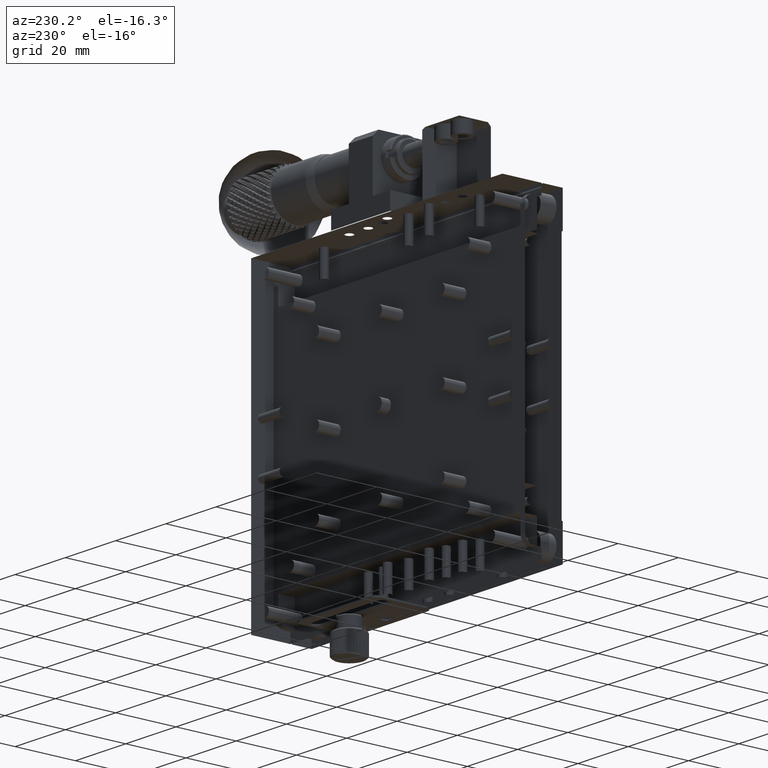
[diagram: clean part render]
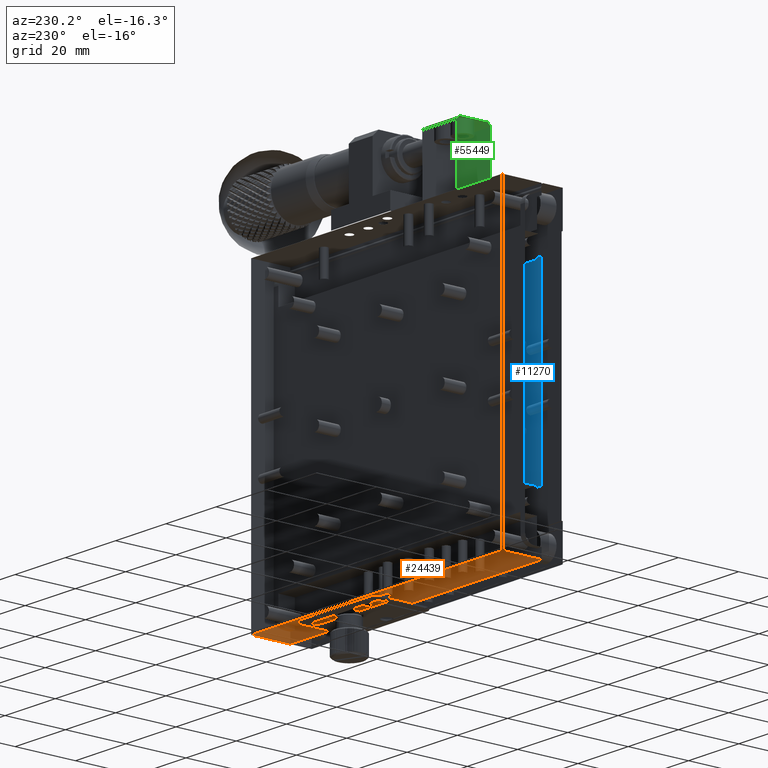
[diagram: same view with three faces highlighted in distinct colors, each labeled with its STEP entity id]
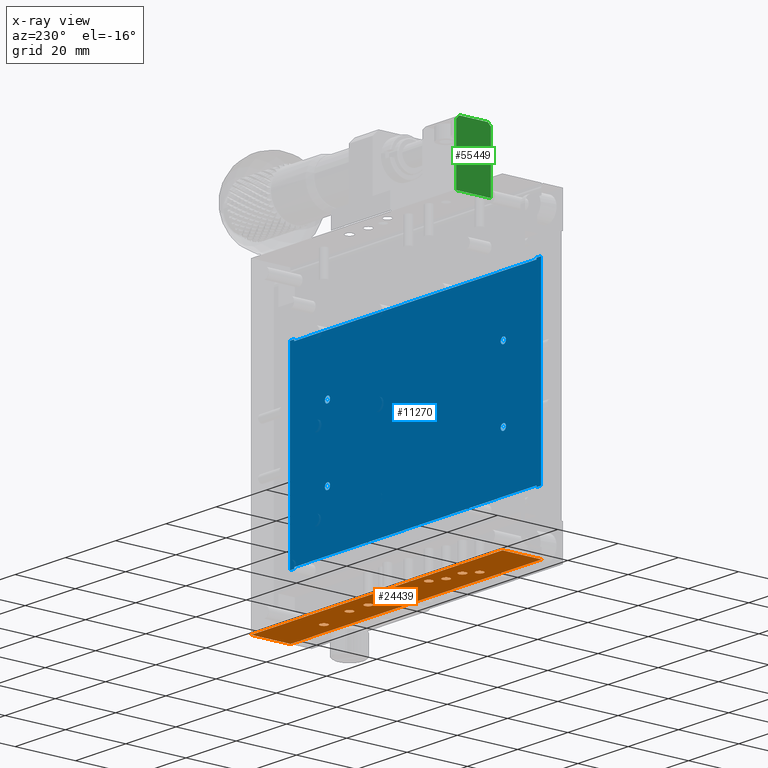
[diagram: x-ray of the same camera — body ghosted, the three highlighted faces saturated]
A machine part, auxiliary view with three faces highlighted in distinct colors.
The next image is the same camera in x-ray (body ghosted, the three faces saturated) — at least one of them is partly hidden behind the body in this view.
Their STEP definitions:

[orange] entity #24439 — the highlighted planar face has unit normal (-0, -0, -1).
#1 = CARTESIAN_POINT ( 'NONE',  ( 30.11189463976842973, -0.6766607809622278147, -49.99998749999998182 ) ) ;
#487 = CARTESIAN_POINT ( 'NONE',  ( 32.55109935357895523, -0.2909499766029360890, -49.99998749999998182 ) ) ;
#923 = VERTEX_POINT ( 'NONE', #89076 ) ;
#1225 = CARTESIAN_POINT ( 'NONE',  ( 44.64249512833340106, -4.340882674701688870, -49.99998749999997472 ) ) ;
#2143 = B_SPLINE_CURVE_WITH_KNOTS ( 'NONE', 3,
 ( #72555, #64238, #72078, #5052, #5536, #65206, #57368, #34877, #64718, #87210, #90102, #36796, #66670, #29007, #37763, #14812, #58813, #96483, #89622, #22139, #53394, #83248, #59305, #38235, #59797, #89135, #51935, #22616, #16256, #52414, #21646, #68112, #46011, #23103 ),
 .UNSPECIFIED., .F., .F.,
 ( 4, 1, 1, 2, 2, 2, 1, 1, 2, 2, 2, 1, 1, 2, 2, 2, 1, 1, 2, 2, 4 ),
 ( 0.000000000000000000, 0.06249999999999726608, 0.09374999999999521216, 0.1093749999999933942, 0.1249999999999915901, 0.2499999999999688027, 0.3124999999999574229, 0.3437499999999539257, 0.3593749999999545364, 0.3749999999999550915, 0.4999999999999845679, 0.5624999999999965583, 0.5937499999999998890, 0.6093750000000015543, 0.6250000000000032196, 0.7500000000000022204, 0.8125000000000017764, 0.8437500000000014433, 0.8593750000000013323, 0.8750000000000013323, 1.000000000000000000 ),
 .UNSPECIFIED. ) ;
#2212 = ORIENTED_EDGE ( 'NONE', *, *, #41219, .F. ) ;
#2311 = ORIENTED_EDGE ( 'NONE', *, *, #88063, .F. ) ;
#2722 = DIRECTION ( 'NONE',  ( 1.000000000000000000, -1.110223024625156047E-16, 0.000000000000000000 ) ) ;
#3255 = CARTESIAN_POINT ( 'NONE',  ( 30.68081080159339180, 0.8079520028618760730, -49.99998749999997472 ) ) ;
#4238 = CARTESIAN_POINT ( 'NONE',  ( 30.86100223725581415, 0.8792020743329770349, -49.99998749999998182 ) ) ;
#5052 = CARTESIAN_POINT ( 'NONE',  ( 46.00813125657287372, -2.761487962147437969, -49.99998749999998893 ) ) ;
#5536 = CARTESIAN_POINT ( 'NONE',  ( 45.99030406738951626, -2.705239172241823198, -49.99998749999998893 ) ) ;
#6295 = DIRECTION ( 'NONE',  ( 0.000000000000000000, 1.000000000000000000, 0.000000000000000000 ) ) ;
#6787 = CARTESIAN_POINT ( 'NONE',  ( -36.19890064642102345, 5.209050023397072238, -49.99998749999998182 ) ) ;
#7811 = CARTESIAN_POINT ( 'NONE',  ( 31.74119646990258303, -1.461102027538641268, -49.99998749999996761 ) ) ;
#8048 = CARTESIAN_POINT ( 'NONE',  ( 13.80109935357898365, 1.709050023397062246, -49.99998749999998182 ) ) ;
#8222 = FACE_BOUND ( 'NONE', #38313, .T. ) ;
#8296 = CARTESIAN_POINT ( 'NONE',  ( 30.05109935357901207, -0.2909499766029360890, -49.99998749999998182 ) ) ;
#8436 = DIRECTION ( 'NONE',  ( 0.000000000000000000, 1.000000000000000000, -4.567142844767030888E-17 ) ) ;
#8684 = CARTESIAN_POINT ( 'NONE',  ( 32.30672078695228322, 0.4710906127217621697, -49.99998749999997472 ) ) ;
#9022 = CARTESIAN_POINT ( 'NONE',  ( 45.22410065792989542, -4.267371456677749642, -49.99998749999999603 ) ) ;
#9631 = CARTESIAN_POINT ( 'NONE',  ( 30.05109935357901563, -0.1318188003481539083, -49.99998749999996761 ) ) ;
#10605 = CARTESIAN_POINT ( 'NONE',  ( 30.17299672845223313, 0.2480296904213052933, -49.99998749999998182 ) ) ;
#11090 = CARTESIAN_POINT ( 'NONE',  ( 30.97174903715046668, 0.9161260932636491328, -49.99998749999998182 ) ) ;
#11666 = CARTESIAN_POINT ( 'NONE',  ( 13.80109935357898365, 2.959050023397034046, -49.99998749999998182 ) ) ;
#12949 = ORIENTED_EDGE ( 'NONE', *, *, #63168, .F. ) ;
#13709 = CARTESIAN_POINT ( 'NONE',  ( 30.82255048260569907, -1.445880084025972900, -49.99998749999998182 ) ) ;
#13980 = EDGE_CURVE ( 'NONE', #42574, #42574, #26356, .T. ) ;
#14195 = CARTESIAN_POINT ( 'NONE',  ( 30.57670722556765597, -1.316239966831133978, -49.99998749999998182 ) ) ;
#14460 = CARTESIAN_POINT ( 'NONE',  ( 43.55109935357902629, -3.170337192478786648, -49.99998749999998893 ) ) ;
#14495 = EDGE_LOOP ( 'NONE', ( #72380, #31670, #2311, #23659 ) ) ;
#14680 = CARTESIAN_POINT ( 'NONE',  ( 32.55109935357896944, -0.4500811528574514275, -49.99998749999998893 ) ) ;
#14812 = CARTESIAN_POINT ( 'NONE',  ( 45.11377386836191050, -1.870272449035110807, -49.99998749999998182 ) ) ;
#15160 = CARTESIAN_POINT ( 'NONE',  ( 32.40121867572790393, -0.8874745937926417083, -49.99998749999997472 ) ) ;
#15409 = CIRCLE ( 'NONE', #30959, 1.249999999999971578 ) ;
#15420 = CARTESIAN_POINT ( 'NONE',  ( 45.56313994290253788, -4.096571409978222000, -49.99998749999998893 ) ) ;
#16051 = CARTESIAN_POINT ( 'NONE',  ( 32.55109935357894102, -0.2115627607248733721, -49.99998749999997472 ) ) ;
#16256 = CARTESIAN_POINT ( 'NONE',  ( 43.67299672845229708, -2.551970309578647456, -49.99998749999996761 ) ) ;
#16505 = DIRECTION ( 'NONE',  ( -2.533746612221223024E-17, -4.567142844767030888E-17, -1.000000000000000000 ) ) ;
#17024 = EDGE_LOOP ( 'NONE', ( #19955 ) ) ;
#18871 = CARTESIAN_POINT ( 'NONE',  ( 13.80109935357898365, 5.209050023397062468, -49.99998749999998182 ) ) ;
#18912 = AXIS2_PLACEMENT_3D ( 'NONE', #64045, #49311, #21460 ) ;
#18923 = CARTESIAN_POINT ( 'NONE',  ( 30.05109935357901207, -0.2909499766029360890, -49.99998749999998182 ) ) ;
#19299 = FACE_BOUND ( 'NONE', #44543, .T. ) ;
#19527 = CARTESIAN_POINT ( 'NONE',  ( -2.698900646421011018, 1.709050023397065576, -49.99998749999998182 ) ) ;
#19606 = CARTESIAN_POINT ( 'NONE',  ( -7.198900646421018124, 0.9590500233970407074, -49.99998749999998182 ) ) ;
#19708 = DIRECTION ( 'NONE',  ( 0.000000000000000000, 1.000000000000000000, 0.000000000000000000 ) ) ;
#19777 = VERTEX_POINT ( 'NONE', #28473 ) ;
#19955 = ORIENTED_EDGE ( 'NONE', *, *, #42604, .F. ) ;
#20732 = DIRECTION ( 'NONE',  ( 2.533746612221223024E-17, 4.567142844767031505E-17, 1.000000000000000000 ) ) ;
#20901 = VECTOR ( 'NONE', #8436, 1000.000000000000000 ) ;
#21460 = DIRECTION ( 'NONE',  ( 0.000000000000000000, 1.000000000000000000, 0.000000000000000000 ) ) ;
#21646 = CARTESIAN_POINT ( 'NONE',  ( 43.64617769589031582, -2.612379787769774975, -49.99998749999998893 ) ) ;
#21774 = CARTESIAN_POINT ( 'NONE',  ( 45.42138790556607120, -4.189851956066528160, -49.99998749999998182 ) ) ;
#21993 = CARTESIAN_POINT ( 'NONE',  ( 63.80109935357896944, 5.209050023397068685, -49.99998749999998182 ) ) ;
#21999 = CARTESIAN_POINT ( 'NONE',  ( 32.42920197870531496, -0.8299296436283543077, -49.99998749999998182 ) ) ;
#22139 = CARTESIAN_POINT ( 'NONE',  ( 44.47174903714928007, -1.883873906736349468, -49.99998749999998182 ) ) ;
#22270 = CARTESIAN_POINT ( 'NONE',  ( 44.88040146620178206, -4.340983627553519852, -49.99998749999998893 ) ) ;
#22320 = ORIENTED_EDGE ( 'NONE', *, *, #94536, .F. ) ;
#22472 = LINE ( 'NONE', #21993, #93833 ) ;
#22477 = CARTESIAN_POINT ( 'NONE',  ( 30.98842483879424137, -1.511627504170761194, -49.99998749999996761 ) ) ;
#22586 = EDGE_LOOP ( 'NONE', ( #56961 ) ) ;
#22616 = CARTESIAN_POINT ( 'NONE',  ( 43.70098003142947363, -2.494425359414988996, -49.99998749999998893 ) ) ;
#22742 = CARTESIAN_POINT ( 'NONE',  ( 44.26211968655263007, -4.219052601727460328, -49.99998749999998182 ) ) ;
#22967 = CARTESIAN_POINT ( 'NONE',  ( 31.63044967000706720, -1.498026046469519867, -49.99998749999998893 ) ) ;
#23103 = CARTESIAN_POINT ( 'NONE',  ( 43.55109935357902629, -3.090949976602936466, -49.99998749999998182 ) ) ;
#23239 = CARTESIAN_POINT ( 'NONE',  ( 46.05109935357895523, -3.090949976602936466, -49.99998749999998182 ) ) ;
#23659 = ORIENTED_EDGE ( 'NONE', *, *, #27985, .F. ) ;
#23861 = FACE_BOUND ( 'NONE', #84048, .T. ) ;
#24439 = ADVANCED_FACE ( 'NONE', ( #31186, #86297, #19299, #53663, #68389, #75226, #90869, #23861, #40791, #8222, #48581 ), #90388, .F. ) ;
#24800 = CARTESIAN_POINT ( 'NONE',  ( 30.15524928440126473, 0.2090564817825786570, -49.99998749999998893 ) ) ;
#25981 = EDGE_CURVE ( 'NONE', #51327, #51327, #37760, .T. ) ;
#26356 = CIRCLE ( 'NONE', #80984, 1.249999999999973355 ) ;
#27985 = EDGE_CURVE ( 'NONE', #19777, #85421, #22472, .T. ) ;
#28473 = CARTESIAN_POINT ( 'NONE',  ( 63.80109935357896944, 5.209050023397058915, -49.99998749999998182 ) ) ;
#28477 = EDGE_CURVE ( 'NONE', #88538, #88538, #61088, .T. ) ;
#28892 = CARTESIAN_POINT ( 'NONE',  ( 23.80109935357898365, 0.9590500233970372657, -49.99998749999998182 ) ) ;
#29007 = CARTESIAN_POINT ( 'NONE',  ( 45.30110581196530717, -1.945099907425916985, -49.99998749999998182 ) ) ;
#29115 = DIRECTION ( 'NONE',  ( 2.533746612221223024E-17, 4.567142844767031505E-17, 1.000000000000000000 ) ) ;
#29139 = CARTESIAN_POINT ( 'NONE',  ( 43.55109935357902629, -3.090949976602936466, -49.99998749999998182 ) ) ;
#29358 = CARTESIAN_POINT ( 'NONE',  ( 30.20219737411452599, -0.9112385285892984355, -49.99998749999998893 ) ) ;
#29605 = CARTESIAN_POINT ( 'NONE',  ( 43.61189463976845104, -3.476660780959956565, -49.99998749999998182 ) ) ;
#29830 = CARTESIAN_POINT ( 'NONE',  ( 30.13094730264302612, -0.7310470929260145523, -49.99998749999998893 ) ) ;
#30095 = CARTESIAN_POINT ( 'NONE',  ( 43.59406745058507937, -3.420411991052067613, -49.99998749999998893 ) ) ;
#30230 = CARTESIAN_POINT ( 'NONE',  ( 43.55109935357902629, -3.090949976602936466, -49.99998749999998182 ) ) ;
#30451 = LINE ( 'NONE', #60276, #20901 ) ;
#30775 = CARTESIAN_POINT ( 'NONE',  ( 30.76211968655338680, -1.419052601728141072, -49.99998749999998182 ) ) ;
#30959 = AXIS2_PLACEMENT_3D ( 'NONE', #8048, #29115, #58926 ) ;
#31186 = FACE_OUTER_BOUND ( 'NONE', #14495, .T. ) ;
#31670 = ORIENTED_EDGE ( 'NONE', *, *, #58918, .F. ) ;
#31751 = VERTEX_POINT ( 'NONE', #75316 ) ;
#32128 = CARTESIAN_POINT ( 'NONE',  ( 32.12411385161708210, 0.6538549434594634890, -49.99998749999998893 ) ) ;
#32218 = VECTOR ( 'NONE', #2722, 1000.000000000000000 ) ;
#33088 = CARTESIAN_POINT ( 'NONE',  ( 30.14617769589031226, 0.1876202122302415010, -49.99998749999998893 ) ) ;
#33332 = EDGE_CURVE ( 'NONE', #89513, #89513, #94041, .T. ) ;
#34069 = CARTESIAN_POINT ( 'NONE',  ( 30.53905876425882226, 0.7146714567754466341, -49.99998749999998182 ) ) ;
#34203 = EDGE_LOOP ( 'NONE', ( #65629 ) ) ;
#34785 = CARTESIAN_POINT ( 'NONE',  ( 7.801099353578980100, -0.2909499766029343681, -49.99998749999998182 ) ) ;
#34787 = EDGE_CURVE ( 'NONE', #57465, #59740, #56634, .T. ) ;
#34877 = CARTESIAN_POINT ( 'NONE',  ( 45.90000133304096863, -2.470661424615095303, -49.99998749999996761 ) ) ;
#35223 = CARTESIAN_POINT ( 'NONE',  ( 7.801099353578980100, 0.9590500233970381538, -49.99998749999998182 ) ) ;
#35313 = DIRECTION ( 'NONE',  ( 2.533746612221223024E-17, 4.567142844767031505E-17, 1.000000000000000000 ) ) ;
#36192 = CARTESIAN_POINT ( 'NONE',  ( 30.05109935357902273, -0.3703371924814788385, -49.99998749999998893 ) ) ;
#36483 = EDGE_LOOP ( 'NONE', ( #88880 ) ) ;
#36668 = CARTESIAN_POINT ( 'NONE',  ( 30.29547792020383312, -1.052990565926757327, -49.99998749999998893 ) ) ;
#36796 = CARTESIAN_POINT ( 'NONE',  ( 45.39762397076918887, -1.990830654455321813, -49.99998749999998893 ) ) ;
#36927 = CARTESIAN_POINT ( 'NONE',  ( 45.74590427364195477, -3.913964474640043267, -49.99998749999999603 ) ) ;
#37063 = CARTESIAN_POINT ( 'NONE',  ( 32.54012877561995509, -0.09450755044728434418, -49.99998749999996761 ) ) ;
#37418 = CARTESIAN_POINT ( 'NONE',  ( 45.24119646990198618, -4.261102027539000581, -49.99998749999998893 ) ) ;
#37627 = CARTESIAN_POINT ( 'NONE',  ( 30.70457473638898094, -1.391069298750127192, -49.99998749999998893 ) ) ;
#37760 = CIRCLE ( 'NONE', #62532, 1.249999999999969802 ) ;
#37763 = CARTESIAN_POINT ( 'NONE',  ( 45.27964822455247429, -1.936019869179899766, -49.99998749999997472 ) ) ;
#37891 = CARTESIAN_POINT ( 'NONE',  ( 43.70219737411058247, -3.711238528585235397, -49.99998749999997472 ) ) ;
#38099 = CARTESIAN_POINT ( 'NONE',  ( 32.32638934380951667, -1.015342104613876861, -49.99998749999998182 ) ) ;
#38235 = CARTESIAN_POINT ( 'NONE',  ( 44.18081080159211638, -1.992047997139398730, -49.99998749999998182 ) ) ;
#38313 = EDGE_LOOP ( 'NONE', ( #69590, #60953 ) ) ;
#38843 = CARTESIAN_POINT ( 'NONE',  ( 44.07670722556611764, -4.116239966829720487, -49.99998749999997472 ) ) ;
#39301 = DIRECTION ( 'NONE',  ( -1.000000000000000000, 1.157198271045886427E-33, 2.533746612221223024E-17 ) ) ;
#39308 = CIRCLE ( 'NONE', #53417, 1.249999999999973355 ) ;
#40791 = FACE_BOUND ( 'NONE', #22586, .T. ) ;
#40901 = CARTESIAN_POINT ( 'NONE',  ( 31.22179724095692066, 0.9590836743476471860, -49.99998749999998182 ) ) ;
#41219 = EDGE_CURVE ( 'NONE', #83129, #83129, #90725, .T. ) ;
#41267 = DIRECTION ( 'NONE',  ( 0.000000000000000000, 1.000000000000000000, -4.567142844767030888E-17 ) ) ;
#42324 = AXIS2_PLACEMENT_3D ( 'NONE', #19527, #61380, #6295 ) ;
#42574 = VERTEX_POINT ( 'NONE', #19606 ) ;
#42604 = EDGE_CURVE ( 'NONE', #45424, #45424, #53281, .T. ) ;
#43994 = CARTESIAN_POINT ( 'NONE',  ( 31.14249512833554334, -1.540882674701690602, -49.99998749999997472 ) ) ;
#44165 = DIRECTION ( 'NONE',  ( 0.000000000000000000, 1.000000000000000000, 0.000000000000000000 ) ) ;
#44253 = CARTESIAN_POINT ( 'NONE',  ( 45.95602101126765859, -3.569520165435491332, -49.99998749999998182 ) ) ;
#44457 = VERTEX_POINT ( 'NONE', #6787 ) ;
#44543 = EDGE_LOOP ( 'NONE', ( #2212 ) ) ;
#44930 = CARTESIAN_POINT ( 'NONE',  ( 32.24590427364314849, -1.113964474639889790, -49.99998749999998893 ) ) ;
#45197 = CARTESIAN_POINT ( 'NONE',  ( 45.82638934380741347, -3.815342104614146024, -49.99998749999998893 ) ) ;
#45424 = VERTEX_POINT ( 'NONE', #53270 ) ;
#45671 = CARTESIAN_POINT ( 'NONE',  ( 44.99739284903791514, -4.330038287807482789, -49.99998749999998893 ) ) ;
#45799 = CARTESIAN_POINT ( 'NONE',  ( 32.47125140451476710, 0.1491471397204238436, -49.99998749999997472 ) ) ;
#46011 = CARTESIAN_POINT ( 'NONE',  ( 43.55109935357903339, -2.931818800348021004, -49.99998749999998182 ) ) ;
#46139 = CARTESIAN_POINT ( 'NONE',  ( 43.56206993153800511, -3.287392402754713228, -49.99998749999997472 ) ) ;
#46267 = CARTESIAN_POINT ( 'NONE',  ( 32.50813125657290925, 0.03851203784909903310, -49.99998749999999603 ) ) ;
#46353 = CARTESIAN_POINT ( 'NONE',  ( 63.80109935357896944, -7.790949976602939309, -49.99998749999998182 ) ) ;
#46639 = CARTESIAN_POINT ( 'NONE',  ( -36.19890064642102345, -7.790949976602928650, -49.99998749999998182 ) ) ;
#47029 = EDGE_CURVE ( 'NONE', #31751, #31751, #39308, .T. ) ;
#47234 = CARTESIAN_POINT ( 'NONE',  ( 31.10480585812132404, 0.9481383346016091229, -49.99998749999998182 ) ) ;
#47710 = CARTESIAN_POINT ( 'NONE',  ( 31.77964822455223981, 0.8639801308201009444, -49.99998749999998182 ) ) ;
#48581 = FACE_BOUND ( 'NONE', #36483, .T. ) ;
#48945 = DIRECTION ( 'NONE',  ( 2.533746612221223024E-17, 4.567142844767031505E-17, 1.000000000000000000 ) ) ;
#49311 = DIRECTION ( 'NONE',  ( 2.533746612221223024E-17, 4.567142844767031505E-17, 1.000000000000000000 ) ) ;
#49727 = B_SPLINE_CURVE_WITH_KNOTS ( 'NONE', 3,
 ( #8296, #36192, #51796, #89497, #1, #81186, #29830, #29358, #36668, #59172, #14195, #37627, #30775, #88522, #13709, #22477, #43994, #52280, #67985, #22967, #82157, #66540, #7811, #73391, #89006, #44930, #38099, #15160, #21999, #81669, #74816, #67507, #14680, #487 ),
 .UNSPECIFIED., .F., .F.,
 ( 4, 1, 1, 2, 2, 2, 1, 1, 2, 2, 2, 1, 1, 2, 2, 2, 1, 1, 2, 2, 4 ),
 ( 0.000000000000000000, 0.06249999999999755751, 0.09374999999999659994, 0.1093749999999965444, 0.1249999999999965028, 0.2500000000000008882, 0.3125000000000030531, 0.3437500000000029976, 0.3593750000000018874, 0.3750000000000007772, 0.5000000000000048850, 0.5625000000000069944, 0.5937500000000053291, 0.6093750000000044409, 0.6250000000000036637, 0.7500000000000014433, 0.8125000000000003331, 0.8437499999999983347, 0.8593749999999984457, 0.8749999999999986677, 1.000000000000000000 ),
 .UNSPECIFIED. ) ;
#50882 = DIRECTION ( 'NONE',  ( 2.533746612221223024E-17, 4.567142844767031505E-17, 1.000000000000000000 ) ) ;
#51327 = VERTEX_POINT ( 'NONE', #52294 ) ;
#51582 = CARTESIAN_POINT ( 'NONE',  ( 44.30109289519229065, -4.236800045779427926, -49.99998749999998893 ) ) ;
#51796 = CARTESIAN_POINT ( 'NONE',  ( 30.06206993153800511, -0.4873924027594275232, -49.99998749999999603 ) ) ;
#51935 = CARTESIAN_POINT ( 'NONE',  ( 43.77580936334767614, -2.366557848594343039, -49.99998749999998893 ) ) ;
#52280 = CARTESIAN_POINT ( 'NONE',  ( 31.38040146620070558, -1.540983627553518698, -49.99998749999997472 ) ) ;
#52294 = CARTESIAN_POINT ( 'NONE',  ( -17.19890064642101635, -1.840949976602959559, -49.99998749999998182 ) ) ;
#52414 = CARTESIAN_POINT ( 'NONE',  ( 43.65524928440130736, -2.590943518217396324, -49.99998749999997472 ) ) ;
#52547 = CARTESIAN_POINT ( 'NONE',  ( 44.48842483879212040, -4.311627504170760794, -49.99998749999998182 ) ) ;
#53041 = CARTESIAN_POINT ( 'NONE',  ( 45.13044967000848828, -4.298026046469522576, -49.99998750000000314 ) ) ;
#53174 = CARTESIAN_POINT ( 'NONE',  ( 32.55109935357895523, -0.2909499766029360890, -49.99998749999998182 ) ) ;
#53270 = CARTESIAN_POINT ( 'NONE',  ( 17.80109935357898721, 0.9590500233970390420, -49.99998749999998182 ) ) ;
#53281 = CIRCLE ( 'NONE', #78307, 1.249999999999973355 ) ;
#53394 = CARTESIAN_POINT ( 'NONE',  ( 44.41546035509158941, -1.901716869802815957, -49.99998749999998893 ) ) ;
#53417 = AXIS2_PLACEMENT_3D ( 'NONE', #58372, #20732, #44165 ) ;
#53663 = FACE_BOUND ( 'NONE', #34203, .T. ) ;
#54609 = CARTESIAN_POINT ( 'NONE',  ( 30.20098003142938481, 0.3055746405849399383, -49.99998749999998893 ) ) ;
#55089 = CARTESIAN_POINT ( 'NONE',  ( 30.87809804922839874, 0.8854715034718767530, -49.99998749999998893 ) ) ;
#55686 = VERTEX_POINT ( 'NONE', #46639 ) ;
#56634 = B_SPLINE_CURVE_WITH_KNOTS ( 'NONE', 3,
 ( #29139, #14460, #46139, #30095, #29605, #68726, #66809, #37891, #58948, #76026, #38843, #96621, #22742, #51582, #81939, #52547, #1225, #22270, #45671, #53041, #82419, #9022, #37418, #21774, #15420, #36927, #45197, #60886, #67280, #81457, #44253, #74130, #59441, #23239 ),
 .UNSPECIFIED., .F., .F.,
 ( 4, 1, 1, 2, 2, 2, 1, 1, 2, 2, 2, 1, 1, 2, 2, 2, 1, 1, 2, 2, 4 ),
 ( 0.000000000000000000, 0.06250000000000367761, 0.09375000000000481559, 0.1093750000000047878, 0.1250000000000047462, 0.2500000000000122680, 0.3125000000000160427, 0.3437500000000200395, 0.3593750000000222045, 0.3750000000000243694, 0.5000000000000365263, 0.5625000000000426326, 0.5937500000000430767, 0.6093750000000431877, 0.6250000000000432987, 0.7500000000000319744, 0.8125000000000264233, 0.8437500000000220934, 0.8593750000000199840, 0.8750000000000179856, 1.000000000000000000 ),
 .UNSPECIFIED. ) ;
#56961 = ORIENTED_EDGE ( 'NONE', *, *, #47029, .F. ) ;
#57368 = CARTESIAN_POINT ( 'NONE',  ( 45.97125140451525027, -2.650852860280043188, -49.99998749999998893 ) ) ;
#57465 = VERTEX_POINT ( 'NONE', #30230 ) ;
#58372 = CARTESIAN_POINT ( 'NONE',  ( -13.69890064642101990, -0.2909499766029308709, -49.99998749999998182 ) ) ;
#58813 = CARTESIAN_POINT ( 'NONE',  ( 44.95970357882488599, -1.841017278504182952, -49.99998749999996051 ) ) ;
#58918 = EDGE_CURVE ( 'NONE', #55686, #44457, #30451, .T. ) ;
#58926 = DIRECTION ( 'NONE',  ( 0.000000000000000000, 1.000000000000000000, 0.000000000000000000 ) ) ;
#58948 = CARTESIAN_POINT ( 'NONE',  ( 43.79547792020558461, -3.852990565928378075, -49.99998749999996761 ) ) ;
#59164 = ORIENTED_EDGE ( 'NONE', *, *, #33332, .F. ) ;
#59172 = CARTESIAN_POINT ( 'NONE',  ( 30.47808485554181956, -1.235754896665774316, -49.99998749999997472 ) ) ;
#59305 = CARTESIAN_POINT ( 'NONE',  ( 44.36100223725597402, -1.920797925666863915, -49.99998749999997472 ) ) ;
#59325 = CARTESIAN_POINT ( 'NONE',  ( 46.05109935357895523, -3.090949976602936466, -49.99998749999998182 ) ) ;
#59441 = CARTESIAN_POINT ( 'NONE',  ( 46.05109935357898365, -3.250081152862700939, -49.99998749999998182 ) ) ;
#59740 = VERTEX_POINT ( 'NONE', #59325 ) ;
#59797 = CARTESIAN_POINT ( 'NONE',  ( 44.03905876425871924, -2.085328543224663989, -49.99998749999998182 ) ) ;
#60276 = CARTESIAN_POINT ( 'NONE',  ( -36.19890064642102345, 5.209050023397068685, -49.99998749999998182 ) ) ;
#60778 = VECTOR ( 'NONE', #39301, 1000.000000000000000 ) ;
#60886 = CARTESIAN_POINT ( 'NONE',  ( 45.90121867572635495, -3.687474593792846367, -49.99998749999998182 ) ) ;
#60953 = ORIENTED_EDGE ( 'NONE', *, *, #34787, .F. ) ;
#61088 = CIRCLE ( 'NONE', #18912, 1.249999999999973355 ) ;
#61380 = DIRECTION ( 'NONE',  ( 2.533746612221223024E-17, 4.567142844767031505E-17, 1.000000000000000000 ) ) ;
#61427 = CARTESIAN_POINT ( 'NONE',  ( 32.55109935357895523, -0.2909499766029360890, -49.99998749999998182 ) ) ;
#61799 = LINE ( 'NONE', #84774, #60778 ) ;
#62532 = AXIS2_PLACEMENT_3D ( 'NONE', #78270, #70457, #63095 ) ;
#62801 = AXIS2_PLACEMENT_3D ( 'NONE', #34785, #50882, #80735 ) ;
#62926 = CARTESIAN_POINT ( 'NONE',  ( 30.27580936334759443, 0.4334421514055595837, -49.99998749999998182 ) ) ;
#63095 = DIRECTION ( 'NONE',  ( 0.000000000000000000, 1.000000000000000000, 0.000000000000000000 ) ) ;
#63168 = EDGE_CURVE ( 'NONE', #76232, #923, #88990, .T. ) ;
#63905 = CARTESIAN_POINT ( 'NONE',  ( 30.35629443351432855, 0.5320645214326208405, -49.99998749999998893 ) ) ;
#64045 = CARTESIAN_POINT ( 'NONE',  ( 23.80109935357898365, -0.2909499766029360890, -49.99998749999998182 ) ) ;
#64238 = CARTESIAN_POINT ( 'NONE',  ( 46.05109935357896234, -3.011562760722236831, -49.99998749999999603 ) ) ;
#64718 = CARTESIAN_POINT ( 'NONE',  ( 45.80672078695378957, -2.328909387279756604, -49.99998749999996761 ) ) ;
#65206 = CARTESIAN_POINT ( 'NONE',  ( 45.97750505977069224, -2.667908780099871535, -49.99998749999999603 ) ) ;
#65629 = ORIENTED_EDGE ( 'NONE', *, *, #28477, .F. ) ;
#66450 = EDGE_CURVE ( 'NONE', #44457, #19777, #70234, .T. ) ;
#66540 = CARTESIAN_POINT ( 'NONE',  ( 31.72410065792941225, -1.467371456677749153, -49.99998749999998893 ) ) ;
#66670 = CARTESIAN_POINT ( 'NONE',  ( 45.34007902060471906, -1.962847351477460256, -49.99998749999999603 ) ) ;
#66809 = CARTESIAN_POINT ( 'NONE',  ( 43.63094730264351284, -3.531047092926522524, -49.99998749999998182 ) ) ;
#66943 = CARTESIAN_POINT ( 'NONE',  ( 32.49030406738953758, 0.09476082775595084939, -49.99998749999998893 ) ) ;
#67017 = DIRECTION ( 'NONE',  ( -0.000000000000000000, -1.000000000000000000, 4.567142844767030888E-17 ) ) ;
#67280 = CARTESIAN_POINT ( 'NONE',  ( 45.92920197870430599, -3.629929643628484914, -49.99998749999998893 ) ) ;
#67507 = CARTESIAN_POINT ( 'NONE',  ( 32.52184447902164521, -0.6034539485082279775, -49.99998749999998182 ) ) ;
#67985 = CARTESIAN_POINT ( 'NONE',  ( 31.49739284903604286, -1.530038287807481190, -49.99998749999998182 ) ) ;
#68112 = CARTESIAN_POINT ( 'NONE',  ( 43.58035422813634341, -2.778446004697244121, -49.99998749999998182 ) ) ;
#68389 = FACE_BOUND ( 'NONE', #74273, .T. ) ;
#68726 = CARTESIAN_POINT ( 'NONE',  ( 43.62469364738728217, -3.513991173103727661, -49.99998749999998182 ) ) ;
#68948 = CARTESIAN_POINT ( 'NONE',  ( -2.698900646421011018, 2.959050023397038931, -49.99998749999998182 ) ) ;
#69590 = ORIENTED_EDGE ( 'NONE', *, *, #81336, .F. ) ;
#69797 = CARTESIAN_POINT ( 'NONE',  ( 31.45970357882309898, 0.9589827214958173141, -49.99998749999997472 ) ) ;
#70234 = LINE ( 'NONE', #18871, #32218 ) ;
#70283 = CARTESIAN_POINT ( 'NONE',  ( 30.91546035509234969, 0.8982831301971834215, -49.99998749999998893 ) ) ;
#70457 = DIRECTION ( 'NONE',  ( 2.533746612221223024E-17, 4.567142844767031505E-17, 1.000000000000000000 ) ) ;
#70780 = CARTESIAN_POINT ( 'NONE',  ( 31.80110581196569086, 0.8549000925737274548, -49.99998749999998182 ) ) ;
#72078 = CARTESIAN_POINT ( 'NONE',  ( 46.04012877561997641, -2.894507550442671384, -49.99998750000000314 ) ) ;
#72380 = ORIENTED_EDGE ( 'NONE', *, *, #66450, .F. ) ;
#72555 = CARTESIAN_POINT ( 'NONE',  ( 46.05109935357895523, -3.090949976602936466, -49.99998749999998182 ) ) ;
#73391 = CARTESIAN_POINT ( 'NONE',  ( 31.92138790556110095, -1.389851956069411587, -49.99998749999997472 ) ) ;
#74130 = CARTESIAN_POINT ( 'NONE',  ( 46.02184447902163100, -3.403453948513476490, -49.99998749999997472 ) ) ;
#74273 = EDGE_LOOP ( 'NONE', ( #12949, #22320 ) ) ;
#74816 = CARTESIAN_POINT ( 'NONE',  ( 32.45602101126765859, -0.7695201654361473187, -49.99998749999997472 ) ) ;
#75182 = ORIENTED_EDGE ( 'NONE', *, *, #13980, .F. ) ;
#75202 = EDGE_LOOP ( 'NONE', ( #93864 ) ) ;
#75226 = FACE_BOUND ( 'NONE', #17024, .T. ) ;
#75316 = CARTESIAN_POINT ( 'NONE',  ( -13.69890064642101990, 0.9590500233970424837, -49.99998749999998182 ) ) ;
#75689 = CARTESIAN_POINT ( 'NONE',  ( 32.40000133304472740, 0.3293385753811646777, -49.99998749999998182 ) ) ;
#76026 = CARTESIAN_POINT ( 'NONE',  ( 43.97808485554094204, -4.035754896664967006, -49.99998749999998893 ) ) ;
#76232 = VERTEX_POINT ( 'NONE', #61427 ) ;
#77122 = CARTESIAN_POINT ( 'NONE',  ( 31.61377386836404568, 0.9297275509648889047, -49.99998749999998182 ) ) ;
#77906 = EDGE_LOOP ( 'NONE', ( #59164 ) ) ;
#78270 = CARTESIAN_POINT ( 'NONE',  ( -17.19890064642101635, -3.090949976602929361, -49.99998749999998182 ) ) ;
#78307 = AXIS2_PLACEMENT_3D ( 'NONE', #95929, #48945, #86649 ) ;
#78328 = AXIS2_PLACEMENT_3D ( 'NONE', #93132, #16505, #41267 ) ;
#78672 = VERTEX_POINT ( 'NONE', #11666 ) ;
#79842 = CARTESIAN_POINT ( 'NONE',  ( -7.198900646421018124, -0.2909499766029326473, -49.99998749999998182 ) ) ;
#80735 = DIRECTION ( 'NONE',  ( 0.000000000000000000, 1.000000000000000000, 0.000000000000000000 ) ) ;
#80984 = AXIS2_PLACEMENT_3D ( 'NONE', #79842, #35313, #19708 ) ;
#81186 = CARTESIAN_POINT ( 'NONE',  ( 30.12469364738726441, -0.7139911731049893850, -49.99998749999997472 ) ) ;
#81336 = EDGE_CURVE ( 'NONE', #59740, #57465, #2143, .T. ) ;
#81457 = CARTESIAN_POINT ( 'NONE',  ( 45.94694942275590677, -3.590956434989175605, -49.99998749999997472 ) ) ;
#81669 = CARTESIAN_POINT ( 'NONE',  ( 32.44694942275647520, -0.7909564349891037294, -49.99998749999996051 ) ) ;
#81939 = CARTESIAN_POINT ( 'NONE',  ( 44.32255048260596197, -4.245880084025974277, -49.99998749999998182 ) ) ;
#82157 = CARTESIAN_POINT ( 'NONE',  ( 31.68673835206534761, -1.480183083403055377, -49.99998749999998893 ) ) ;
#82419 = CARTESIAN_POINT ( 'NONE',  ( 45.18673835206624290, -4.280183083403056976, -49.99998749999999603 ) ) ;
#82889 = EDGE_CURVE ( 'NONE', #78672, #78672, #15409, .T. ) ;
#83129 = VERTEX_POINT ( 'NONE', #68948 ) ;
#83248 = CARTESIAN_POINT ( 'NONE',  ( 44.37809804922799373, -1.914528496528122625, -49.99998749999998182 ) ) ;
#84048 = EDGE_LOOP ( 'NONE', ( #75182 ) ) ;
#84774 = CARTESIAN_POINT ( 'NONE',  ( -36.19890064642102345, -7.790949976602939309, -49.99998749999998182 ) ) ;
#84928 = CARTESIAN_POINT ( 'NONE',  ( 32.02549148159192072, 0.7343400136244965237, -49.99998749999998182 ) ) ;
#85421 = VERTEX_POINT ( 'NONE', #46353 ) ;
#86297 = FACE_BOUND ( 'NONE', #75202, .T. ) ;
#86649 = DIRECTION ( 'NONE',  ( 0.000000000000000000, 1.000000000000000000, 0.000000000000000000 ) ) ;
#87210 = CARTESIAN_POINT ( 'NONE',  ( 45.62411385161633604, -2.146145056539777496, -49.99998749999998182 ) ) ;
#88063 = EDGE_CURVE ( 'NONE', #85421, #55686, #61799, .T. ) ;
#88522 = CARTESIAN_POINT ( 'NONE',  ( 30.80109289519272053, -1.436800045779803803, -49.99998749999998893 ) ) ;
#88538 = VERTEX_POINT ( 'NONE', #28892 ) ;
#88880 = ORIENTED_EDGE ( 'NONE', *, *, #25981, .F. ) ;
#88990 = B_SPLINE_CURVE_WITH_KNOTS ( 'NONE', 3,
 ( #53174, #16051, #37063, #46267, #66943, #96761, #45799, #75689, #8684, #32128, #84928, #91795, #93248, #70780, #47710, #77122, #69797, #40901, #47234, #11090, #70283, #55089, #4238, #3255, #34069, #63905, #62926, #54609, #10605, #24800, #33088, #92766, #9631, #18923 ),
 .UNSPECIFIED., .F., .F.,
 ( 4, 1, 1, 2, 2, 2, 1, 1, 2, 2, 2, 1, 1, 2, 2, 2, 1, 1, 2, 2, 4 ),
 ( 0.000000000000000000, 0.06249999999999375500, 0.09374999999999115985, 0.1093749999999890782, 0.1249999999999870104, 0.2499999999999705236, 0.3124999999999623079, 0.3437499999999603095, 0.3593749999999593103, 0.3749999999999583111, 0.4999999999999658051, 0.5624999999999723554, 0.5937499999999770184, 0.6093749999999793499, 0.6249999999999815703, 0.7499999999999883427, 0.8124999999999917843, 0.8437499999999942268, 0.8593749999999947820, 0.8749999999999952260, 1.000000000000000000 ),
 .UNSPECIFIED. ) ;
#89006 = CARTESIAN_POINT ( 'NONE',  ( 32.06313994290012914, -1.296571409978526379, -49.99998749999997472 ) ) ;
#89076 = CARTESIAN_POINT ( 'NONE',  ( 30.05109935357901207, -0.2909499766029360890, -49.99998749999998182 ) ) ;
#89135 = CARTESIAN_POINT ( 'NONE',  ( 43.85629443351435697, -2.267935478567324026, -49.99998749999997472 ) ) ;
#89497 = CARTESIAN_POINT ( 'NONE',  ( 30.09406745058507582, -0.6204119910556022965, -49.99998749999998182 ) ) ;
#89513 = VERTEX_POINT ( 'NONE', #35223 ) ;
#89622 = CARTESIAN_POINT ( 'NONE',  ( 44.60480585811976795, -1.851861665398389478, -49.99998749999998182 ) ) ;
#90102 = CARTESIAN_POINT ( 'NONE',  ( 45.52549148159057779, -2.065659986374174917, -49.99998749999997472 ) ) ;
#90388 = PLANE ( 'NONE',  #78328 ) ;
#90725 = CIRCLE ( 'NONE', #42324, 1.249999999999973355 ) ;
#90869 = FACE_BOUND ( 'NONE', #77906, .T. ) ;
#91795 = CARTESIAN_POINT ( 'NONE',  ( 31.89762397077021561, 0.8091693455436811400, -49.99998749999998182 ) ) ;
#92766 = CARTESIAN_POINT ( 'NONE',  ( 30.08035422813633275, 0.02155399530262246122, -49.99998749999998182 ) ) ;
#93132 = CARTESIAN_POINT ( 'NONE',  ( -36.19890064642102345, 5.209050023397068685, -49.99998749999998182 ) ) ;
#93248 = CARTESIAN_POINT ( 'NONE',  ( 31.84007902060536566, 0.8371526485218996338, -49.99998749999998182 ) ) ;
#93833 = VECTOR ( 'NONE', #67017, 1000.000000000000000 ) ;
#93864 = ORIENTED_EDGE ( 'NONE', *, *, #82889, .F. ) ;
#94041 = CIRCLE ( 'NONE', #62801, 1.249999999999972466 ) ;
#94536 = EDGE_CURVE ( 'NONE', #923, #76232, #49727, .T. ) ;
#95929 = CARTESIAN_POINT ( 'NONE',  ( 17.80109935357898721, -0.2909499766029343681, -49.99998749999998182 ) ) ;
#96483 = CARTESIAN_POINT ( 'NONE',  ( 44.72179724095602893, -1.840916325652352858, -49.99998749999998182 ) ) ;
#96621 = CARTESIAN_POINT ( 'NONE',  ( 44.20457473638783341, -4.191069298749066974, -49.99998749999998893 ) ) ;
#96761 = CARTESIAN_POINT ( 'NONE',  ( 32.47750505977071356, 0.1320912198988923869, -49.99998749999998893 ) ) ;

[blue] entity #11270 — the highlighted planar face has unit normal (0, 1, 0).
#937 = CARTESIAN_POINT ( 'NONE',  ( -22.22390064642097940, -7.590949976602933802, -11.36581531375294318 ) ) ;
#940 = EDGE_LOOP ( 'NONE', ( #68822, #50444 ) ) ;
#955 = CARTESIAN_POINT ( 'NONE',  ( -20.17390064642102132, -7.590949976602932914, 11.63418468624705326 ) ) ;
#1276 = ORIENTED_EDGE ( 'NONE', *, *, #1480, .F. ) ;
#1450 = CARTESIAN_POINT ( 'NONE',  ( -20.68269119154083668, -7.590949976602929361, 10.60438145193689863 ) ) ;
#1480 = EDGE_CURVE ( 'NONE', #31840, #73221, #20293, .T. ) ;
#2656 = CARTESIAN_POINT ( 'NONE',  ( -22.22390064642097940, -7.590949976602932026, 11.63418468624705504 ) ) ;
#3023 = EDGE_CURVE ( 'NONE', #87528, #93163, #20284, .T. ) ;
#3639 = CARTESIAN_POINT ( 'NONE',  ( -21.71511010130117114, -7.590949976602932026, 10.60438145193689863 ) ) ;
#4614 = LINE ( 'NONE', #95084, #26825 ) ;
#4675 = VERTEX_POINT ( 'NONE', #13391 ) ;
#5490 = CARTESIAN_POINT ( 'NONE',  ( 47.80277735999400335, -7.590949976602932914, 11.76830408146824958 ) ) ;
#5657 = CARTESIAN_POINT ( 'NONE',  ( 49.43100974155328231, -7.590949976602933802, -12.31964601345812227 ) ) ;
#5875 = VECTOR ( 'NONE', #84258, 1000.000000000000000 ) ;
#6415 = B_SPLINE_CURVE_WITH_KNOTS ( 'NONE', 3,
 ( #46346, #8758, #9241, #1450, #60131, #67986, #89965, #61095, #83116, #955, #22968, #31260, #39057, #52766, #68933, #75304, #60622, #90462 ),
 .UNSPECIFIED., .F., .F.,
 ( 4, 2, 2, 2, 2, 2, 2, 2, 4 ),
 ( 0.000000000000000000, 0.1250000000000000000, 0.2500000000000000000, 0.3750000000000000000, 0.5000000000000000000, 0.6250000000000000000, 0.7500000000000000000, 0.8750000000000000000, 1.000000000000000000 ),
 .UNSPECIFIED. ) ;
#6626 = CARTESIAN_POINT ( 'NONE',  ( 49.43100974155326810, -7.590949976602934690, -10.68032898654189289 ) ) ;
#7651 = ORIENTED_EDGE ( 'NONE', *, *, #81985, .F. ) ;
#7969 = CARTESIAN_POINT ( 'NONE',  ( -21.19890064642100214, -7.590949976602932914, 10.47501250000001605 ) ) ;
#8065 = CARTESIAN_POINT ( 'NONE',  ( -21.19890064642100214, -7.590949976602932914, 12.52501249999997057 ) ) ;
#8254 = EDGE_CURVE ( 'NONE', #73221, #29450, #93048, .T. ) ;
#8281 = CARTESIAN_POINT ( 'NONE',  ( -22.09453169448410037, -7.590949976602933802, -10.98377804511984657 ) ) ;
#8553 = EDGE_CURVE ( 'NONE', #21148, #72980, #48554, .T. ) ;
#8611 = CARTESIAN_POINT ( 'NONE',  ( -36.19890064642103056, -7.590949976321406112, -30.47385147157418217 ) ) ;
#8758 = CARTESIAN_POINT ( 'NONE',  ( -21.06472846017394218, -7.590949976602932026, 10.47501250000001782 ) ) ;
#9158 = B_SPLINE_CURVE_WITH_KNOTS ( 'NONE', 3,
 ( #11816, #35260, #65118, #27954, #41639, #64152, #93989, #49418, #42118, #94468, #57767, #87610, #20614, #34793, #27472, #50411, #13268, #31314 ),
 .UNSPECIFIED., .F., .F.,
 ( 4, 2, 2, 2, 2, 2, 2, 2, 4 ),
 ( 0.000000000000000000, 0.1250000000000000000, 0.2500000000000000000, 0.3750000000000000000, 0.5000000000000000000, 0.6250000000000000000, 0.7500000000000000000, 0.8750000000000000000, 1.000000000000000000 ),
 .UNSPECIFIED. ) ;
#9241 = CARTESIAN_POINT ( 'NONE',  ( -20.93060906495274409, -7.590949976602933802, 10.50169050641499346 ) ) ;
#10002 = CARTESIAN_POINT ( 'NONE',  ( 62.00109935357900071, -7.590949976602934690, 1.249999999342055190E-05 ) ) ;
#10003 = CARTESIAN_POINT ( 'NONE',  ( -21.33307283266806564, -7.590949976602932026, 12.52501249999996880 ) ) ;
#10168 = CARTESIAN_POINT ( 'NONE',  ( -21.82881103439527948, -7.590949976602934690, -12.31964601345812227 ) ) ;
#10404 = CARTESIAN_POINT ( 'NONE',  ( 13.80109935357899964, -7.590949976602934690, -30.47385147157418217 ) ) ;
#10457 = CARTESIAN_POINT ( 'NONE',  ( -34.39890064642101919, -7.590949976321406112, -30.47385147157418217 ) ) ;
#10665 = CARTESIAN_POINT ( 'NONE',  ( -21.33307283266806564, -7.590949976602934690, -12.52498749999998751 ) ) ;
#10753 = EDGE_CURVE ( 'NONE', #47660, #56562, #56552, .T. ) ;
#10975 = CARTESIAN_POINT ( 'NONE',  ( -22.19722264000600731, -7.590949976602932026, 11.23172091853173882 ) ) ;
#11057 = VECTOR ( 'NONE', #18683, 1000.000000000000000 ) ;
#11122 = EDGE_LOOP ( 'NONE', ( #30746, #78532 ) ) ;
#11239 = VERTEX_POINT ( 'NONE', #25767 ) ;
#11270 = ADVANCED_FACE ( 'NONE', ( #85406, #40895, #78571, #70774, #33570 ), #26273, .F. ) ;
#11392 = EDGE_CURVE ( 'NONE', #56562, #47660, #94844, .T. ) ;
#11816 = CARTESIAN_POINT ( 'NONE',  ( 48.80109935357899786, -7.590949976602934690, -10.47498750000002943 ) ) ;
#11849 = EDGE_CURVE ( 'NONE', #29450, #87528, #41994, .T. ) ;
#12043 = DIRECTION ( 'NONE',  ( 0.000000000000000000, -0.000000000000000000, 1.000000000000000000 ) ) ;
#12093 = CARTESIAN_POINT ( 'NONE',  ( -20.56899025844672835, -7.590949976602933802, -12.31964601345812227 ) ) ;
#13268 = CARTESIAN_POINT ( 'NONE',  ( 48.66692716733195567, -7.590949976602934690, -12.52498749999998751 ) ) ;
#13391 = CARTESIAN_POINT ( 'NONE',  ( 62.00109935357900071, -7.590949976437463498, 30.47387647178203451 ) ) ;
#13746 = DIRECTION ( 'NONE',  ( 0.000000000000000000, -0.000000000000000000, 1.000000000000000000 ) ) ;
#14044 = CARTESIAN_POINT ( 'NONE',  ( -21.06472846017394218, -7.590949976602934690, -10.47498750000003298 ) ) ;
#15607 = EDGE_CURVE ( 'NONE', #24154, #78188, #71186, .T. ) ;
#15741 = CARTESIAN_POINT ( 'NONE',  ( 47.98144084012088939, -7.590949976602932026, 10.87010211202571952 ) ) ;
#15925 = CARTESIAN_POINT ( 'NONE',  ( 49.69673040164208544, -7.590949976602932914, 12.01622195488015521 ) ) ;
#16339 = DIRECTION ( 'NONE',  ( 1.000000000000000000, 0.000000000000000000, 0.000000000000000000 ) ) ;
#16473 = CARTESIAN_POINT ( 'NONE',  ( -34.39890064642101208, -7.590949976520198206, 30.47387647164345026 ) ) ;
#16867 = B_SPLINE_CURVE_WITH_KNOTS ( 'NONE', 3,
 ( #40297, #10003, #69684, #70169, #19295, #47598, #49065, #40787, #2656, #48077, #10975, #92653, #39816, #25182, #3639, #26163, #78938, #32494 ),
 .UNSPECIFIED., .F., .F.,
 ( 4, 2, 2, 2, 2, 2, 2, 2, 4 ),
 ( 0.000000000000000000, 0.1250000000000000000, 0.2500000000000000000, 0.3750000000000000000, 0.5000000000000000000, 0.6250000000000000000, 0.7500000000000000000, 0.8750000000000000000, 1.000000000000000000 ),
 .UNSPECIFIED. ) ;
#18287 = CARTESIAN_POINT ( 'NONE',  ( 62.00109935357900071, -7.590949976321411441, -30.47385147157418217 ) ) ;
#18683 = DIRECTION ( 'NONE',  ( 1.000000000000000000, 0.000000000000000000, -0.000000000000000000 ) ) ;
#19295 = CARTESIAN_POINT ( 'NONE',  ( -21.82881103439527948, -7.590949976602932026, 12.31967101345810889 ) ) ;
#19862 = CARTESIAN_POINT ( 'NONE',  ( 49.79942134716399238, -7.590949976602934690, -11.76827908146826474 ) ) ;
#20284 = LINE ( 'NONE', #79946, #69900 ) ;
#20293 = LINE ( 'NONE', #49593, #33926 ) ;
#20614 = CARTESIAN_POINT ( 'NONE',  ( 47.98144084012088939, -7.590949976602934690, -12.12989788797428048 ) ) ;
#20721 = EDGE_CURVE ( 'NONE', #11239, #31840, #52505, .T. ) ;
#20883 = VERTEX_POINT ( 'NONE', #31957 ) ;
#21123 = CARTESIAN_POINT ( 'NONE',  ( 48.80109935357899786, -7.590949976602932914, 12.52501249999997057 ) ) ;
#21148 = VERTEX_POINT ( 'NONE', #73557 ) ;
#21354 = CARTESIAN_POINT ( 'NONE',  ( -20.37924213296287235, -7.590949976602934690, -12.12989788797427870 ) ) ;
#21548 = LINE ( 'NONE', #73899, #45634 ) ;
#21599 = CARTESIAN_POINT ( 'NONE',  ( 48.28488989869884307, -7.590949976602932026, 10.60438145193689863 ) ) ;
#21770 = CARTESIAN_POINT ( 'NONE',  ( 49.06939093504726657, -7.590949976602934690, -12.49830949358500831 ) ) ;
#21782 = CARTESIAN_POINT ( 'NONE',  ( 49.62075786703710634, -7.590949976602932914, 10.87010211202571952 ) ) ;
#21857 = ORIENTED_EDGE ( 'NONE', *, *, #42340, .F. ) ;
#21981 = CARTESIAN_POINT ( 'NONE',  ( -21.46719222788927084, -7.590949976602934690, -10.50166550641500685 ) ) ;
#22311 = EDGE_LOOP ( 'NONE', ( #44430, #95477 ) ) ;
#22950 = CARTESIAN_POINT ( 'NONE',  ( -21.82881103439527948, -7.590949976602933802, -10.68032898654189111 ) ) ;
#22968 = CARTESIAN_POINT ( 'NONE',  ( -20.20057865283600051, -7.590949976602932026, 11.76830408146824780 ) ) ;
#23246 = CARTESIAN_POINT ( 'NONE',  ( 49.06939093504725946, -7.590949976602934690, 12.49833449358499671 ) ) ;
#23549 = ORIENTED_EDGE ( 'NONE', *, *, #20721, .F. ) ;
#23615 = CARTESIAN_POINT ( 'NONE',  ( -36.19890064642103056, -7.590949976602934690, 1.249999999342055190E-05 ) ) ;
#23769 = EDGE_LOOP ( 'NONE', ( #86194, #57658, #69641, #1276, #23549, #45979, #86887, #74104, #29449, #21857, #90047, #82244 ) ) ;
#24154 = VERTEX_POINT ( 'NONE', #70105 ) ;
#24587 = EDGE_CURVE ( 'NONE', #93163, #70237, #4614, .T. ) ;
#24860 = CARTESIAN_POINT ( 'NONE',  ( -22.01855915987912482, -7.590949976602934690, -12.12989788797428048 ) ) ;
#25182 = CARTESIAN_POINT ( 'NONE',  ( -21.82881103439527948, -7.590949976602932914, 10.68035398654187951 ) ) ;
#25767 = CARTESIAN_POINT ( 'NONE',  ( 62.00109935357900071, -7.590949976602934690, -29.99998750000001024 ) ) ;
#26163 = CARTESIAN_POINT ( 'NONE',  ( -21.46719222788926018, -7.590949976602934690, 10.50169050641499169 ) ) ;
#26273 = PLANE ( 'NONE',  #76161 ) ;
#26825 = VECTOR ( 'NONE', #28085, 1000.000000000000000 ) ;
#27223 = EDGE_CURVE ( 'NONE', #72980, #21148, #47187, .T. ) ;
#27265 = CARTESIAN_POINT ( 'NONE',  ( -21.19890064642100214, -7.590949976602934690, -10.47498750000002943 ) ) ;
#27472 = CARTESIAN_POINT ( 'NONE',  ( 48.28488989869884307, -7.590949976602934690, -12.39561854806310315 ) ) ;
#27502 = CARTESIAN_POINT ( 'NONE',  ( 48.53280777211075048, -7.590949976602933802, 12.49833449358499671 ) ) ;
#27750 = CARTESIAN_POINT ( 'NONE',  ( -21.06472846017394218, -7.590949976602933802, -12.52498749999998218 ) ) ;
#27954 = CARTESIAN_POINT ( 'NONE',  ( 48.28488989869883596, -7.590949976602932914, -10.60435645193690846 ) ) ;
#28053 = LINE ( 'NONE', #80845, #34722 ) ;
#28085 = DIRECTION ( 'NONE',  ( -0.000000000000000000, 0.000000000000000000, -1.000000000000000000 ) ) ;
#28172 = CARTESIAN_POINT ( 'NONE',  ( 48.80109935357899786, -7.590949976602934690, -10.47498750000002943 ) ) ;
#28653 = CARTESIAN_POINT ( 'NONE',  ( 49.82609935357897513, -7.590949976602934690, -11.36581531375294318 ) ) ;
#28721 = CARTESIAN_POINT ( 'NONE',  ( -20.17390064642102487, -7.590949976602933802, -11.63415968624706842 ) ) ;
#29449 = ORIENTED_EDGE ( 'NONE', *, *, #89825, .F. ) ;
#29450 = VERTEX_POINT ( 'NONE', #8611 ) ;
#30574 = CARTESIAN_POINT ( 'NONE',  ( 48.80109935357899786, -7.590949976602932914, 10.47501250000001605 ) ) ;
#30746 = ORIENTED_EDGE ( 'NONE', *, *, #91454, .F. ) ;
#31260 = CARTESIAN_POINT ( 'NONE',  ( -20.30326959835790746, -7.590949976602932914, 12.01622195488015521 ) ) ;
#31314 = CARTESIAN_POINT ( 'NONE',  ( 48.80109935357899786, -7.590949976602934690, -12.52498749999998395 ) ) ;
#31481 = CARTESIAN_POINT ( 'NONE',  ( 13.80109935357899964, -7.590949976602934690, -29.99998750000001024 ) ) ;
#31840 = VERTEX_POINT ( 'NONE', #35634 ) ;
#31957 = CARTESIAN_POINT ( 'NONE',  ( 62.00109935357900071, -7.590949976602934690, 30.00001249999999331 ) ) ;
#32494 = CARTESIAN_POINT ( 'NONE',  ( -21.19890064642100214, -7.590949976602932914, 10.47501250000001605 ) ) ;
#33570 = FACE_BOUND ( 'NONE', #22311, .T. ) ;
#33926 = VECTOR ( 'NONE', #85842, 1000.000000000000000 ) ;
#34590 = CARTESIAN_POINT ( 'NONE',  ( -20.20057865283600051, -7.590949976602934690, -11.76827908146826474 ) ) ;
#34722 = VECTOR ( 'NONE', #95054, 1000.000000000000000 ) ;
#34793 = CARTESIAN_POINT ( 'NONE',  ( 48.17118896560473473, -7.590949976602934690, -12.31964601345812227 ) ) ;
#35260 = CARTESIAN_POINT ( 'NONE',  ( 48.66692716733193436, -7.590949976602933802, -10.47498750000003120 ) ) ;
#35418 = DIRECTION ( 'NONE',  ( 1.000000000000000000, 0.000000000000000000, -0.000000000000000000 ) ) ;
#35471 = CARTESIAN_POINT ( 'NONE',  ( 49.82609935357898223, -7.590949976602933802, -11.63415968624706842 ) ) ;
#35634 = CARTESIAN_POINT ( 'NONE',  ( -34.39890064642101919, -7.590949976602934690, -29.99998750000001024 ) ) ;
#36281 = CARTESIAN_POINT ( 'NONE',  ( 47.80277735999399624, -7.590949976602932026, 11.23172091853173882 ) ) ;
#36446 = CARTESIAN_POINT ( 'NONE',  ( 49.31730880845915976, -7.590949976602934690, -10.60435645193691201 ) ) ;
#36934 = CARTESIAN_POINT ( 'NONE',  ( 48.93527153982605427, -7.590949976602932026, 10.47501250000001782 ) ) ;
#37611 = CARTESIAN_POINT ( 'NONE',  ( -21.19890064642100214, -7.590949976602934690, -10.47498750000002943 ) ) ;
#38200 = VERTEX_POINT ( 'NONE', #7969 ) ;
#38219 = CARTESIAN_POINT ( 'NONE',  ( 48.80109935357899786, -7.590949976602934690, -12.52498749999998395 ) ) ;
#38372 = CARTESIAN_POINT ( 'NONE',  ( 49.31730880845915976, -7.590949976602929361, 10.60438145193689863 ) ) ;
#39057 = CARTESIAN_POINT ( 'NONE',  ( -20.37924213296288656, -7.590949976602932026, 12.12992288797426710 ) ) ;
#39815 = DIRECTION ( 'NONE',  ( 0.000000000000000000, -0.000000000000000000, 1.000000000000000000 ) ) ;
#39816 = CARTESIAN_POINT ( 'NONE',  ( -22.01855915987912482, -7.590949976602932026, 10.87010211202571952 ) ) ;
#39982 = CARTESIAN_POINT ( 'NONE',  ( -21.71511010130117114, -7.590949976602934690, -12.39561854806310315 ) ) ;
#40297 = CARTESIAN_POINT ( 'NONE',  ( -21.19890064642100214, -7.590949976602932914, 12.52501249999997057 ) ) ;
#40336 = CARTESIAN_POINT ( 'NONE',  ( 13.80109935357899964, -7.590949976602934690, -30.47385147157418217 ) ) ;
#40787 = CARTESIAN_POINT ( 'NONE',  ( -22.19722264000600731, -7.590949976602932914, 11.76830408146824958 ) ) ;
#40895 = FACE_BOUND ( 'NONE', #11122, .T. ) ;
#41300 = DIRECTION ( 'NONE',  ( -1.000000000000000000, -0.000000000000000000, 0.000000000000000000 ) ) ;
#41639 = CARTESIAN_POINT ( 'NONE',  ( 48.17118896560472763, -7.590949976602933802, -10.68032898654189111 ) ) ;
#41640 = LINE ( 'NONE', #61731, #11057 ) ;
#41994 = LINE ( 'NONE', #23615, #88749 ) ;
#42118 = CARTESIAN_POINT ( 'NONE',  ( 47.77609935357902060, -7.590949976602933802, -11.36581531375294318 ) ) ;
#42340 = EDGE_CURVE ( 'NONE', #20883, #4675, #77005, .T. ) ;
#42747 = EDGE_CURVE ( 'NONE', #45695, #66849, #9158, .T. ) ;
#42818 = CARTESIAN_POINT ( 'NONE',  ( 48.80109935357899786, -7.590949976602934690, -12.52498749999998395 ) ) ;
#43612 = CARTESIAN_POINT ( 'NONE',  ( 47.77609935357902060, -7.590949976602932026, 11.63418468624705504 ) ) ;
#44430 = ORIENTED_EDGE ( 'NONE', *, *, #11392, .F. ) ;
#45634 = VECTOR ( 'NONE', #13746, 1000.000000000000000 ) ;
#45695 = VERTEX_POINT ( 'NONE', #57270 ) ;
#45926 = CARTESIAN_POINT ( 'NONE',  ( -34.39890064642101919, -7.590949976602934690, 30.00001249999999331 ) ) ;
#45979 = ORIENTED_EDGE ( 'NONE', *, *, #53549, .F. ) ;
#46146 = CARTESIAN_POINT ( 'NONE',  ( 49.69673040164209254, -7.590949976602932026, 10.98380304511983319 ) ) ;
#46166 = CARTESIAN_POINT ( 'NONE',  ( 48.80109935357899786, -7.590949976602932914, 12.52501249999997057 ) ) ;
#46346 = CARTESIAN_POINT ( 'NONE',  ( -21.19890064642100214, -7.590949976602932914, 10.47501250000001605 ) ) ;
#46914 = EDGE_CURVE ( 'NONE', #81997, #38200, #16867, .T. ) ;
#47187 = B_SPLINE_CURVE_WITH_KNOTS ( 'NONE', 3,
 ( #65406, #27750, #80548, #81034, #12093, #21354, #50197, #34590, #28721, #95244, #87401, #64425, #57067, #94264, #80063, #58522, #14044, #27265 ),
 .UNSPECIFIED., .F., .F.,
 ( 4, 2, 2, 2, 2, 2, 2, 2, 4 ),
 ( 0.000000000000000000, 0.1250000000000000000, 0.2500000000000000000, 0.3750000000000000000, 0.5000000000000000000, 0.6250000000000000000, 0.7500000000000000000, 0.8750000000000000000, 1.000000000000000000 ),
 .UNSPECIFIED. ) ;
#47209 = EDGE_CURVE ( 'NONE', #70237, #20883, #41640, .T. ) ;
#47598 = CARTESIAN_POINT ( 'NONE',  ( -22.01855915987911771, -7.590949976602932914, 12.12992288797426532 ) ) ;
#47660 = VERTEX_POINT ( 'NONE', #46166 ) ;
#48077 = CARTESIAN_POINT ( 'NONE',  ( -22.22390064642097940, -7.590949976602932914, 11.36584031375292980 ) ) ;
#48554 = B_SPLINE_CURVE_WITH_KNOTS ( 'NONE', 3,
 ( #37611, #88989, #21981, #67492, #22950, #82618, #8281, #67967, #937, #58179, #88028, #69859, #24860, #10168, #39982, #53718, #10665, #61549 ),
 .UNSPECIFIED., .F., .F.,
 ( 4, 2, 2, 2, 2, 2, 2, 2, 4 ),
 ( 0.000000000000000000, 0.1250000000000000000, 0.2500000000000000000, 0.3750000000000000000, 0.5000000000000000000, 0.6250000000000000000, 0.7500000000000000000, 0.8750000000000000000, 1.000000000000000000 ),
 .UNSPECIFIED. ) ;
#49065 = CARTESIAN_POINT ( 'NONE',  ( -22.09453169448410037, -7.590949976602932026, 12.01622195488015521 ) ) ;
#49418 = CARTESIAN_POINT ( 'NONE',  ( 47.80277735999400335, -7.590949976602934690, -11.23169591853175042 ) ) ;
#49593 = CARTESIAN_POINT ( 'NONE',  ( -34.39890064642101208, -7.590949976602934690, 1.249999999342055190E-05 ) ) ;
#49638 = CARTESIAN_POINT ( 'NONE',  ( 49.06939093504725946, -7.590949976602934690, -10.50166550641500507 ) ) ;
#49951 = CARTESIAN_POINT ( 'NONE',  ( 48.17118896560472763, -7.590949976602932026, 12.31967101345810889 ) ) ;
#50197 = CARTESIAN_POINT ( 'NONE',  ( -20.30326959835791101, -7.590949976602933802, -12.01619695488017037 ) ) ;
#50411 = CARTESIAN_POINT ( 'NONE',  ( 48.53280777211075048, -7.590949976602934690, -12.49830949358501009 ) ) ;
#50444 = ORIENTED_EDGE ( 'NONE', *, *, #8553, .F. ) ;
#50923 = CARTESIAN_POINT ( 'NONE',  ( 48.28488989869883596, -7.590949976602929361, 12.39564354806308621 ) ) ;
#51576 = CARTESIAN_POINT ( 'NONE',  ( 49.69673040164208544, -7.590949976602934690, -10.98377804511984657 ) ) ;
#51590 = CARTESIAN_POINT ( 'NONE',  ( 49.79942134716399949, -7.590949976602932026, 11.76830408146824780 ) ) ;
#52075 = CARTESIAN_POINT ( 'NONE',  ( 48.80109935357899786, -7.590949976602932914, 12.52501249999997057 ) ) ;
#52505 = LINE ( 'NONE', #31481, #92146 ) ;
#52766 = CARTESIAN_POINT ( 'NONE',  ( -20.56899025844672479, -7.590949976602932914, 12.31967101345810889 ) ) ;
#53175 = EDGE_CURVE ( 'NONE', #24154, #91866, #28053, .T. ) ;
#53549 = EDGE_CURVE ( 'NONE', #78188, #11239, #21548, .T. ) ;
#53718 = CARTESIAN_POINT ( 'NONE',  ( -21.46719222788926018, -7.590949976602934690, -12.49830949358501009 ) ) ;
#54362 = DIRECTION ( 'NONE',  ( 0.000000000000000000, -0.000000000000000000, 1.000000000000000000 ) ) ;
#56048 = CARTESIAN_POINT ( 'NONE',  ( 13.80109935357899964, -7.590949976602934690, 1.249999999342055190E-05 ) ) ;
#56552 = B_SPLINE_CURVE_WITH_KNOTS ( 'NONE', 3,
 ( #21123, #95957, #27502, #50923, #49951, #79819, #72505, #5490, #43612, #73486, #36281, #96433, #15741, #82723, #21599, #81273, #60709, #90549 ),
 .UNSPECIFIED., .F., .F.,
 ( 4, 2, 2, 2, 2, 2, 2, 2, 4 ),
 ( 0.000000000000000000, 0.1250000000000000000, 0.2500000000000000000, 0.3750000000000000000, 0.5000000000000000000, 0.6250000000000000000, 0.7500000000000000000, 0.8750000000000000000, 1.000000000000000000 ),
 .UNSPECIFIED. ) ;
#56562 = VERTEX_POINT ( 'NONE', #93408 ) ;
#57005 = CARTESIAN_POINT ( 'NONE',  ( 49.62075786703710634, -7.590949976602934690, -12.12989788797427870 ) ) ;
#57067 = CARTESIAN_POINT ( 'NONE',  ( -20.37924213296288656, -7.590949976602934690, -10.87007711202573290 ) ) ;
#57270 = CARTESIAN_POINT ( 'NONE',  ( 48.80109935357899786, -7.590949976602934690, -10.47498750000002943 ) ) ;
#57658 = ORIENTED_EDGE ( 'NONE', *, *, #11849, .F. ) ;
#57767 = CARTESIAN_POINT ( 'NONE',  ( 47.80277735999399624, -7.590949976602934690, -11.76827908146826296 ) ) ;
#58179 = CARTESIAN_POINT ( 'NONE',  ( -22.22390064642097940, -7.590949976602934690, -11.63415968624706665 ) ) ;
#58522 = CARTESIAN_POINT ( 'NONE',  ( -20.93060906495275120, -7.590949976602934690, -10.50166550641500507 ) ) ;
#59884 = CARTESIAN_POINT ( 'NONE',  ( 62.00109935357900071, -7.590949976271993194, 30.47387647185132664 ) ) ;
#59931 = CARTESIAN_POINT ( 'NONE',  ( 49.82609935357897513, -7.590949976602932914, 11.63418468624705326 ) ) ;
#60131 = CARTESIAN_POINT ( 'NONE',  ( -20.56899025844672835, -7.590949976602932026, 10.68035398654187951 ) ) ;
#60622 = CARTESIAN_POINT ( 'NONE',  ( -21.06472846017394218, -7.590949976602933802, 12.52501249999997235 ) ) ;
#60709 = CARTESIAN_POINT ( 'NONE',  ( 48.66692716733195567, -7.590949976602933802, 10.47501250000001960 ) ) ;
#60891 = CARTESIAN_POINT ( 'NONE',  ( 49.82609935357898223, -7.590949976602932026, 11.36584031375293158 ) ) ;
#61095 = CARTESIAN_POINT ( 'NONE',  ( -20.20057865283600051, -7.590949976602932914, 11.23172091853173704 ) ) ;
#61549 = CARTESIAN_POINT ( 'NONE',  ( -21.19890064642100214, -7.590949976602934690, -12.52498749999998395 ) ) ;
#61731 = CARTESIAN_POINT ( 'NONE',  ( 13.80109935357899964, -7.590949976602934690, 30.00001249999999331 ) ) ;
#64007 = CARTESIAN_POINT ( 'NONE',  ( -21.19890064642100214, -7.590949976602934690, -12.52498749999998395 ) ) ;
#64152 = CARTESIAN_POINT ( 'NONE',  ( 47.98144084012088229, -7.590949976602934690, -10.87007711202573290 ) ) ;
#64425 = CARTESIAN_POINT ( 'NONE',  ( -20.30326959835790746, -7.590949976602934690, -10.98377804511984657 ) ) ;
#65118 = CARTESIAN_POINT ( 'NONE',  ( 48.53280777211075048, -7.590949976602934690, -10.50166550641500685 ) ) ;
#65337 = CARTESIAN_POINT ( 'NONE',  ( 48.93527153982606848, -7.590949976602934690, -10.47498750000003298 ) ) ;
#65406 = CARTESIAN_POINT ( 'NONE',  ( -21.19890064642100214, -7.590949976602934690, -12.52498749999998395 ) ) ;
#66849 = VERTEX_POINT ( 'NONE', #38219 ) ;
#67492 = CARTESIAN_POINT ( 'NONE',  ( -21.71511010130116048, -7.590949976602932914, -10.60435645193690846 ) ) ;
#67967 = CARTESIAN_POINT ( 'NONE',  ( -22.19722264000600731, -7.590949976602934690, -11.23169591853175042 ) ) ;
#67986 = CARTESIAN_POINT ( 'NONE',  ( -20.37924213296287235, -7.590949976602932914, 10.87010211202571952 ) ) ;
#68256 = CARTESIAN_POINT ( 'NONE',  ( 49.06939093504726657, -7.590949976602933802, 10.50169050641499346 ) ) ;
#68822 = ORIENTED_EDGE ( 'NONE', *, *, #27223, .F. ) ;
#68933 = CARTESIAN_POINT ( 'NONE',  ( -20.68269119154083668, -7.590949976602932026, 12.39564354806308799 ) ) ;
#69641 = ORIENTED_EDGE ( 'NONE', *, *, #8254, .F. ) ;
#69684 = CARTESIAN_POINT ( 'NONE',  ( -21.46719222788927084, -7.590949976602933802, 12.49833449358499671 ) ) ;
#69846 = ORIENTED_EDGE ( 'NONE', *, *, #42747, .F. ) ;
#69859 = CARTESIAN_POINT ( 'NONE',  ( -22.09453169448409326, -7.590949976602934690, -12.01619695488016681 ) ) ;
#69900 = VECTOR ( 'NONE', #35418, 1000.000000000000000 ) ;
#70105 = CARTESIAN_POINT ( 'NONE',  ( 63.80109935357899786, -7.590949976180649372, -30.47385147157418572 ) ) ;
#70169 = CARTESIAN_POINT ( 'NONE',  ( -21.71511010130116048, -7.590949976602929361, 12.39564354806308621 ) ) ;
#70237 = VERTEX_POINT ( 'NONE', #45926 ) ;
#70774 = FACE_BOUND ( 'NONE', #86428, .T. ) ;
#71186 = LINE ( 'NONE', #40336, #73339 ) ;
#71952 = B_SPLINE_CURVE_WITH_KNOTS ( 'NONE', 3,
 ( #42818, #73661, #21770, #87832, #5657, #57005, #96616, #19862, #35471, #28653, #95178, #51576, #88311, #6626, #36446, #49638, #65337, #28172 ),
 .UNSPECIFIED., .F., .F.,
 ( 4, 2, 2, 2, 2, 2, 2, 2, 4 ),
 ( 0.000000000000000000, 0.1250000000000000000, 0.2500000000000000000, 0.3750000000000000000, 0.5000000000000000000, 0.6250000000000000000, 0.7500000000000000000, 0.8750000000000000000, 1.000000000000000000 ),
 .UNSPECIFIED. ) ;
#72505 = CARTESIAN_POINT ( 'NONE',  ( 47.90546830551591029, -7.590949976602932026, 12.01622195488015521 ) ) ;
#72980 = VERTEX_POINT ( 'NONE', #64007 ) ;
#73221 = VERTEX_POINT ( 'NONE', #10457 ) ;
#73339 = VECTOR ( 'NONE', #41300, 1000.000000000000000 ) ;
#73486 = CARTESIAN_POINT ( 'NONE',  ( 47.77609935357901350, -7.590949976602932914, 11.36584031375292980 ) ) ;
#73557 = CARTESIAN_POINT ( 'NONE',  ( -21.19890064642100214, -7.590949976602934690, -10.47498750000002943 ) ) ;
#73661 = CARTESIAN_POINT ( 'NONE',  ( 48.93527153982605427, -7.590949976602933802, -12.52498749999998218 ) ) ;
#73899 = CARTESIAN_POINT ( 'NONE',  ( 62.00109935357900071, -7.590949976602934690, 1.249999999342055190E-05 ) ) ;
#74104 = ORIENTED_EDGE ( 'NONE', *, *, #53175, .T. ) ;
#74556 = DIRECTION ( 'NONE',  ( -1.000000000000000000, -0.000000000000000000, 0.000000000000000000 ) ) ;
#74610 = CARTESIAN_POINT ( 'NONE',  ( 48.93527153982606848, -7.590949976602933802, 12.52501249999997235 ) ) ;
#75304 = CARTESIAN_POINT ( 'NONE',  ( -20.93060906495275120, -7.590949976602934690, 12.49833449358499671 ) ) ;
#76034 = CARTESIAN_POINT ( 'NONE',  ( 49.79942134716399238, -7.590949976602932914, 11.23172091853173704 ) ) ;
#76161 = AXIS2_PLACEMENT_3D ( 'NONE', #56048, #95192, #12043 ) ;
#76946 = LINE ( 'NONE', #59884, #83978 ) ;
#77005 = LINE ( 'NONE', #10002, #90809 ) ;
#78188 = VERTEX_POINT ( 'NONE', #18287 ) ;
#78532 = ORIENTED_EDGE ( 'NONE', *, *, #46914, .F. ) ;
#78571 = FACE_BOUND ( 'NONE', #940, .T. ) ;
#78938 = CARTESIAN_POINT ( 'NONE',  ( -21.33307283266806564, -7.590949976602933802, 10.47501250000001960 ) ) ;
#79819 = CARTESIAN_POINT ( 'NONE',  ( 47.98144084012088229, -7.590949976602932914, 12.12992288797426532 ) ) ;
#79946 = CARTESIAN_POINT ( 'NONE',  ( 13.80109935357899964, -7.590949976602934690, 30.47387647157415813 ) ) ;
#80063 = CARTESIAN_POINT ( 'NONE',  ( -20.68269119154083668, -7.590949976602934690, -10.60435645193691201 ) ) ;
#80548 = CARTESIAN_POINT ( 'NONE',  ( -20.93060906495274409, -7.590949976602934690, -12.49830949358500831 ) ) ;
#80845 = CARTESIAN_POINT ( 'NONE',  ( 63.80109935357899786, -7.590949976039889080, 37.00001249999998976 ) ) ;
#81034 = CARTESIAN_POINT ( 'NONE',  ( -20.68269119154083668, -7.590949976602932914, -12.39561854806309960 ) ) ;
#81273 = CARTESIAN_POINT ( 'NONE',  ( 48.53280777211075048, -7.590949976602934690, 10.50169050641499169 ) ) ;
#81463 = CARTESIAN_POINT ( 'NONE',  ( 49.31730880845915976, -7.590949976602932026, 12.39564354806308799 ) ) ;
#81733 = CARTESIAN_POINT ( 'NONE',  ( 63.80109935357899786, -7.590949976155936696, 30.47387647171274949 ) ) ;
#81985 = EDGE_CURVE ( 'NONE', #66849, #45695, #71952, .T. ) ;
#81997 = VERTEX_POINT ( 'NONE', #8065 ) ;
#82244 = ORIENTED_EDGE ( 'NONE', *, *, #24587, .F. ) ;
#82618 = CARTESIAN_POINT ( 'NONE',  ( -22.01855915987911771, -7.590949976602934690, -10.87007711202573290 ) ) ;
#82723 = CARTESIAN_POINT ( 'NONE',  ( 48.17118896560473473, -7.590949976602932914, 10.68035398654187951 ) ) ;
#83116 = CARTESIAN_POINT ( 'NONE',  ( -20.17390064642102487, -7.590949976602932026, 11.36584031375293158 ) ) ;
#83978 = VECTOR ( 'NONE', #16339, 1000.000000000000000 ) ;
#84258 = DIRECTION ( 'NONE',  ( -1.000000000000000000, -0.000000000000000000, 0.000000000000000000 ) ) ;
#85406 = FACE_OUTER_BOUND ( 'NONE', #23769, .T. ) ;
#85842 = DIRECTION ( 'NONE',  ( -0.000000000000000000, 0.000000000000000000, -1.000000000000000000 ) ) ;
#86194 = ORIENTED_EDGE ( 'NONE', *, *, #3023, .F. ) ;
#86428 = EDGE_LOOP ( 'NONE', ( #7651, #69846 ) ) ;
#86887 = ORIENTED_EDGE ( 'NONE', *, *, #15607, .F. ) ;
#87401 = CARTESIAN_POINT ( 'NONE',  ( -20.20057865283600051, -7.590949976602934690, -11.23169591853175220 ) ) ;
#87528 = VERTEX_POINT ( 'NONE', #91625 ) ;
#87610 = CARTESIAN_POINT ( 'NONE',  ( 47.90546830551590318, -7.590949976602934690, -12.01619695488016681 ) ) ;
#87832 = CARTESIAN_POINT ( 'NONE',  ( 49.31730880845915976, -7.590949976602932914, -12.39561854806309960 ) ) ;
#88028 = CARTESIAN_POINT ( 'NONE',  ( -22.19722264000600731, -7.590949976602934690, -11.76827908146826296 ) ) ;
#88311 = CARTESIAN_POINT ( 'NONE',  ( 49.62075786703712055, -7.590949976602934690, -10.87007711202573290 ) ) ;
#88749 = VECTOR ( 'NONE', #54362, 1000.000000000000000 ) ;
#88793 = CARTESIAN_POINT ( 'NONE',  ( 49.43100974155328231, -7.590949976602932026, 10.68035398654187951 ) ) ;
#88989 = CARTESIAN_POINT ( 'NONE',  ( -21.33307283266806564, -7.590949976602933802, -10.47498750000003120 ) ) ;
#89825 = EDGE_CURVE ( 'NONE', #4675, #91866, #76946, .T. ) ;
#89965 = CARTESIAN_POINT ( 'NONE',  ( -20.30326959835791101, -7.590949976602932026, 10.98380304511983319 ) ) ;
#90047 = ORIENTED_EDGE ( 'NONE', *, *, #47209, .F. ) ;
#90251 = CARTESIAN_POINT ( 'NONE',  ( 49.43100974155326810, -7.590949976602932914, 12.31967101345810889 ) ) ;
#90462 = CARTESIAN_POINT ( 'NONE',  ( -21.19890064642100214, -7.590949976602932914, 12.52501249999997057 ) ) ;
#90549 = CARTESIAN_POINT ( 'NONE',  ( 48.80109935357899786, -7.590949976602932914, 10.47501250000001605 ) ) ;
#90731 = CARTESIAN_POINT ( 'NONE',  ( 49.62075786703712055, -7.590949976602932026, 12.12992288797426710 ) ) ;
#90809 = VECTOR ( 'NONE', #39815, 1000.000000000000000 ) ;
#91454 = EDGE_CURVE ( 'NONE', #38200, #81997, #6415, .T. ) ;
#91625 = CARTESIAN_POINT ( 'NONE',  ( -36.19890064642103056, -7.590949976520199094, 30.47387647167808922 ) ) ;
#91866 = VERTEX_POINT ( 'NONE', #81733 ) ;
#92146 = VECTOR ( 'NONE', #74556, 1000.000000000000000 ) ;
#92653 = CARTESIAN_POINT ( 'NONE',  ( -22.09453169448409326, -7.590949976602932914, 10.98380304511983141 ) ) ;
#93048 = LINE ( 'NONE', #10404, #5875 ) ;
#93163 = VERTEX_POINT ( 'NONE', #16473 ) ;
#93408 = CARTESIAN_POINT ( 'NONE',  ( 48.80109935357899786, -7.590949976602932914, 10.47501250000001605 ) ) ;
#93989 = CARTESIAN_POINT ( 'NONE',  ( 47.90546830551591029, -7.590949976602933802, -10.98377804511984657 ) ) ;
#94264 = CARTESIAN_POINT ( 'NONE',  ( -20.56899025844672479, -7.590949976602934690, -10.68032898654189289 ) ) ;
#94468 = CARTESIAN_POINT ( 'NONE',  ( 47.77609935357901350, -7.590949976602934690, -11.63415968624706665 ) ) ;
#94844 = B_SPLINE_CURVE_WITH_KNOTS ( 'NONE', 3,
 ( #30574, #36934, #68256, #38372, #88793, #21782, #46146, #76034, #60891, #59931, #51590, #15925, #90731, #90251, #81463, #23246, #74610, #52075 ),
 .UNSPECIFIED., .F., .F.,
 ( 4, 2, 2, 2, 2, 2, 2, 2, 4 ),
 ( 0.000000000000000000, 0.1250000000000000000, 0.2500000000000000000, 0.3750000000000000000, 0.5000000000000000000, 0.6250000000000000000, 0.7500000000000000000, 0.8750000000000000000, 1.000000000000000000 ),
 .UNSPECIFIED. ) ;
#95054 = DIRECTION ( 'NONE',  ( -0.000000000000000000, -0.000000000000000000, 1.000000000000000000 ) ) ;
#95084 = CARTESIAN_POINT ( 'NONE',  ( -34.39890064642101208, -7.590949976602934690, 1.249999999342055190E-05 ) ) ;
#95178 = CARTESIAN_POINT ( 'NONE',  ( 49.79942134716399949, -7.590949976602934690, -11.23169591853175220 ) ) ;
#95192 = DIRECTION ( 'NONE',  ( 0.000000000000000000, 1.000000000000000000, 0.000000000000000000 ) ) ;
#95244 = CARTESIAN_POINT ( 'NONE',  ( -20.17390064642102132, -7.590949976602934690, -11.36581531375294318 ) ) ;
#95477 = ORIENTED_EDGE ( 'NONE', *, *, #10753, .F. ) ;
#95957 = CARTESIAN_POINT ( 'NONE',  ( 48.66692716733193436, -7.590949976602932026, 12.52501249999996880 ) ) ;
#96433 = CARTESIAN_POINT ( 'NONE',  ( 47.90546830551590318, -7.590949976602932914, 10.98380304511983141 ) ) ;
#96616 = CARTESIAN_POINT ( 'NONE',  ( 49.69673040164209254, -7.590949976602933802, -12.01619695488017037 ) ) ;

[green] entity #55449 — the highlighted planar face has unit normal (-1, 0, -0).
#432 = CARTESIAN_POINT ( 'NONE',  ( -17.19890064642099503, 3.709050023397026052, 70.00001249999999686 ) ) ;
#3265 = PLANE ( 'NONE',  #41039 ) ;
#3489 = EDGE_CURVE ( 'NONE', #26588, #41294, #38026, .T. ) ;
#5258 = VECTOR ( 'NONE', #14136, 1000.000000000000114 ) ;
#5879 = CARTESIAN_POINT ( 'NONE',  ( -17.19890064642099503, 3.709050023397017171, 70.00001249999999686 ) ) ;
#10613 = DIRECTION ( 'NONE',  ( -1.000000000000000000, 6.661338147750940229E-16, -6.394208963384067357E-17 ) ) ;
#10847 = DIRECTION ( 'NONE',  ( 0.000000000000000000, 0.7071067811865473507, 0.7071067811865477948 ) ) ;
#14136 = DIRECTION ( 'NONE',  ( 0.000000000000000000, 0.7071067811865522357, -0.7071067811865426878 ) ) ;
#16768 = CARTESIAN_POINT ( 'NONE',  ( -17.19890064642100214, -6.790949976602969507, 50.00001250000000397 ) ) ;
#25424 = LINE ( 'NONE', #31304, #76002 ) ;
#25597 = EDGE_CURVE ( 'NONE', #92945, #26588, #52110, .T. ) ;
#26588 = VERTEX_POINT ( 'NONE', #85622 ) ;
#28220 = DIRECTION ( 'NONE',  ( 1.204333430388548784E-31, 1.607062396541540497E-16, -1.000000000000000000 ) ) ;
#30472 = LINE ( 'NONE', #60301, #53062 ) ;
#31304 = CARTESIAN_POINT ( 'NONE',  ( -17.19890064642099503, 4.709050023397026941, 70.00001249999999686 ) ) ;
#34150 = CARTESIAN_POINT ( 'NONE',  ( -17.19890064642100214, -5.790949976602967730, 70.00001249999999686 ) ) ;
#35702 = EDGE_CURVE ( 'NONE', #48155, #90454, #30472, .T. ) ;
#38026 = LINE ( 'NONE', #83035, #88469 ) ;
#39930 = CARTESIAN_POINT ( 'NONE',  ( -17.19890064642099503, 4.709050023397026941, 70.00001249999999686 ) ) ;
#41039 = AXIS2_PLACEMENT_3D ( 'NONE', #39930, #10613, #53666 ) ;
#41294 = VERTEX_POINT ( 'NONE', #16768 ) ;
#41875 = EDGE_CURVE ( 'NONE', #41294, #48155, #56791, .T. ) ;
#46269 = DIRECTION ( 'NONE',  ( -6.661338147750940229E-16, -1.000000000000000000, 0.000000000000000000 ) ) ;
#46785 = EDGE_LOOP ( 'NONE', ( #93923, #86073, #92774, #80343, #66838, #57218 ) ) ;
#48155 = VERTEX_POINT ( 'NONE', #76317 ) ;
#50119 = VECTOR ( 'NONE', #86638, 1000.000000000000000 ) ;
#52110 = LINE ( 'NONE', #81991, #87546 ) ;
#53062 = VECTOR ( 'NONE', #10847, 999.9999999999998863 ) ;
#53666 = DIRECTION ( 'NONE',  ( -6.661338147750940229E-16, -1.000000000000000000, 0.000000000000000000 ) ) ;
#54127 = FACE_OUTER_BOUND ( 'NONE', #46785, .T. ) ;
#55449 = ADVANCED_FACE ( 'NONE', ( #54127 ), #3265, .F. ) ;
#56791 = LINE ( 'NONE', #65601, #50119 ) ;
#57218 = ORIENTED_EDGE ( 'NONE', *, *, #35702, .F. ) ;
#58348 = EDGE_CURVE ( 'NONE', #87764, #92945, #67447, .T. ) ;
#60301 = CARTESIAN_POINT ( 'NONE',  ( -17.19890064642100214, -6.790949976602990823, 69.00001249999996844 ) ) ;
#65601 = CARTESIAN_POINT ( 'NONE',  ( -17.19890064642100214, -6.790949976602969507, 70.00001249999999686 ) ) ;
#66838 = ORIENTED_EDGE ( 'NONE', *, *, #67633, .F. ) ;
#67447 = LINE ( 'NONE', #432, #5258 ) ;
#67633 = EDGE_CURVE ( 'NONE', #90454, #87764, #25424, .T. ) ;
#69454 = DIRECTION ( 'NONE',  ( 6.661338147750940229E-16, 1.000000000000000000, -0.000000000000000000 ) ) ;
#76002 = VECTOR ( 'NONE', #69454, 1000.000000000000000 ) ;
#76317 = CARTESIAN_POINT ( 'NONE',  ( -17.19890064642100214, -6.790949976602973948, 69.00001249999998265 ) ) ;
#80343 = ORIENTED_EDGE ( 'NONE', *, *, #58348, .F. ) ;
#81991 = CARTESIAN_POINT ( 'NONE',  ( -17.19890064642099503, 4.709050023397027829, 50.00001250000001107 ) ) ;
#83035 = CARTESIAN_POINT ( 'NONE',  ( -17.19890064642099503, 4.709050023397026941, 50.00001250000000397 ) ) ;
#85622 = CARTESIAN_POINT ( 'NONE',  ( -17.19890064642099503, 4.709050023397026941, 50.00001250000000397 ) ) ;
#86073 = ORIENTED_EDGE ( 'NONE', *, *, #3489, .F. ) ;
#86638 = DIRECTION ( 'NONE',  ( -6.394208963384067357E-17, 4.259398809248128201E-32, 1.000000000000000000 ) ) ;
#87546 = VECTOR ( 'NONE', #28220, 1000.000000000000000 ) ;
#87764 = VERTEX_POINT ( 'NONE', #5879 ) ;
#88469 = VECTOR ( 'NONE', #46269, 1000.000000000000000 ) ;
#90454 = VERTEX_POINT ( 'NONE', #34150 ) ;
#92088 = CARTESIAN_POINT ( 'NONE',  ( -17.19890064642099503, 4.709050023397016282, 69.00001250000001107 ) ) ;
#92774 = ORIENTED_EDGE ( 'NONE', *, *, #25597, .F. ) ;
#92945 = VERTEX_POINT ( 'NONE', #92088 ) ;
#93923 = ORIENTED_EDGE ( 'NONE', *, *, #41875, .F. ) ;